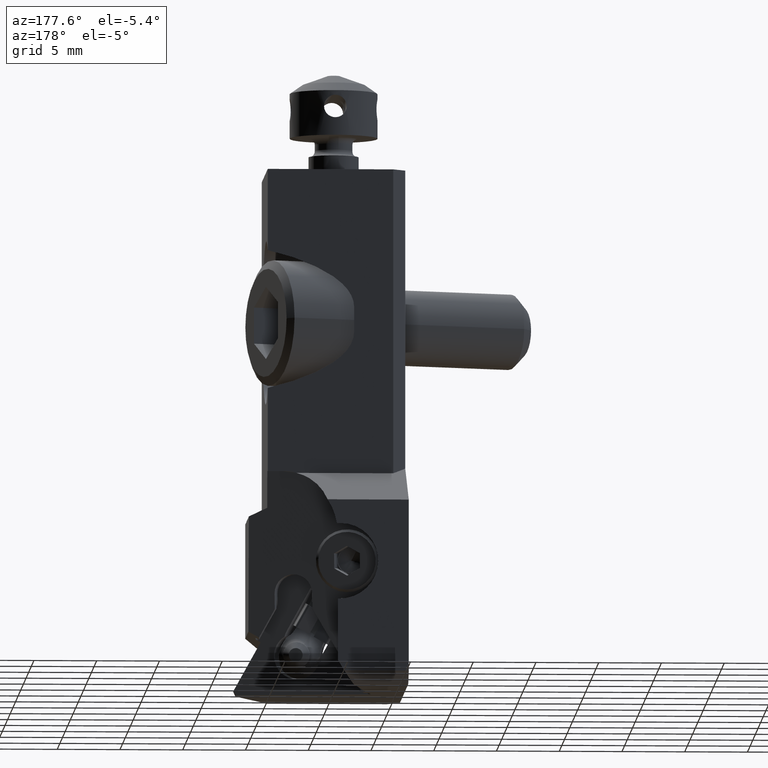
[diagram: clean part render]
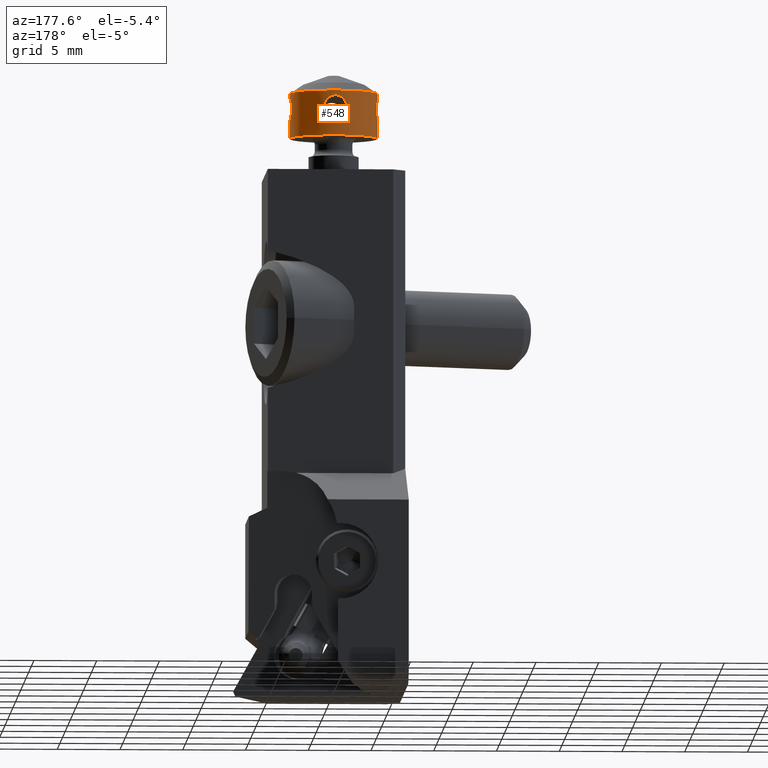
[diagram: same view with one face highlighted and labeled with its STEP entity id]
A machine part, auxiliary view. The second image highlights one B-rep face of the part: STEP entity #548.
In plain terms, the highlighted cylindrical surface (partial cylindrical patch) has radius 3.5 mm, axis along (0, 0, 1).
Its self-contained STEP definition (entity closure, byte-faithful):
#129=FACE_BOUND('',#1095,.T.);
#130=FACE_BOUND('',#1096,.T.);
#189=CYLINDRICAL_SURFACE('',#4578,3.5);
#339=CIRCLE('',#4567,3.5);
#345=CIRCLE('',#4576,3.5);
#548=ADVANCED_FACE('',(#129,#130),#189,.T.);
#1095=EDGE_LOOP('',(#2171,#2172,#2173,#2174,#2175,#2176,#2177,#2178,#2179,
#2180));
#1096=EDGE_LOOP('',(#2181,#2182));
#1170=B_SPLINE_CURVE_WITH_KNOTS('',3,(#7213,#7214,#7215,#7216,#7217,#7218,
#7219,#7220,#7221,#7222,#7223,#7224,#7225,#7226,#7227,#7228,#7229,#7230,
#7231,#7232,#7233,#7234),.UNSPECIFIED.,.F.,.F.,(4,1,1,1,1,1,1,1,1,1,1,1,
1,1,1,1,1,1,1,4),(0.,0.05263157894737,0.1052631578947,0.1578947368421,0.2105263157895,
0.2631578947368,0.3157894736842,0.3684210526316,0.4210526315789,0.4736842105263,
0.5263157894737,0.5789473684211,0.6315789473684,0.6842105263158,0.7368421052632,
0.7894736842105,0.8421052631579,0.8947368421053,0.9473684210526,1.),
 .UNSPECIFIED.);
#1171=B_SPLINE_CURVE_WITH_KNOTS('',3,(#7236,#7237,#7238,#7239,#7240,#7241,
#7242,#7243,#7244,#7245,#7246,#7247,#7248,#7249,#7250,#7251,#7252,#7253,
#7254,#7255,#7256,#7257),.UNSPECIFIED.,.F.,.F.,(4,1,1,1,1,1,1,1,1,1,1,1,
1,1,1,1,1,1,1,4),(0.,0.05263157894737,0.1052631578947,0.1578947368421,0.2105263157895,
0.2631578947368,0.3157894736842,0.3684210526316,0.4210526315789,0.4736842105263,
0.5263157894737,0.5789473684211,0.6315789473684,0.6842105263158,0.7368421052632,
0.7894736842105,0.8421052631579,0.8947368421053,0.9473684210526,1.),
 .UNSPECIFIED.);
#1172=B_SPLINE_CURVE_WITH_KNOTS('',3,(#7258,#7259,#7260,#7261,#7262,#7263,
#7264,#7265,#7266,#7267,#7268,#7269,#7270,#7271,#7272,#7273,#7274,#7275,
#7276,#7277,#7278,#7279),.UNSPECIFIED.,.F.,.F.,(4,1,1,1,1,1,1,1,1,1,1,1,
1,1,1,1,1,1,1,4),(0.,0.05263157894737,0.1052631578947,0.1578947368421,0.2105263157895,
0.2631578947368,0.3157894736842,0.3684210526316,0.4210526315789,0.4736842105263,
0.5263157894737,0.5789473684211,0.6315789473684,0.6842105263158,0.7368421052632,
0.7894736842105,0.8421052631579,0.8947368421053,0.9473684210526,1.),
 .UNSPECIFIED.);
#1173=B_SPLINE_CURVE_WITH_KNOTS('',3,(#7281,#7282,#7283,#7284,#7285,#7286,
#7287,#7288,#7289,#7290,#7291,#7292,#7293,#7294,#7295,#7296,#7297,#7298,
#7299,#7300,#7301,#7302),.UNSPECIFIED.,.F.,.F.,(4,1,1,1,1,1,1,1,1,1,1,1,
1,1,1,1,1,1,1,4),(0.,0.05263157894737,0.1052631578947,0.1578947368421,0.2105263157895,
0.2631578947368,0.3157894736842,0.3684210526316,0.4210526315789,0.4736842105263,
0.5263157894737,0.5789473684211,0.6315789473684,0.6842105263158,0.7368421052632,
0.7894736842105,0.8421052631579,0.8947368421053,0.9473684210526,1.),
 .UNSPECIFIED.);
#1174=B_SPLINE_CURVE_WITH_KNOTS('',3,(#7303,#7304,#7305,#7306,#7307,#7308,
#7309,#7310,#7311,#7312,#7313,#7314,#7315,#7316,#7317,#7318,#7319,#7320,
#7321,#7322,#7323,#7324,#7325,#7326,#7327,#7328,#7329,#7330,#7331,#7332,
#7333),.UNSPECIFIED.,.F.,.F.,(4,3,3,3,3,3,3,3,3,3,4),(0.,0.10499181573253,
0.209833584549119,0.316913861721892,0.425643838817805,0.532012948903621,
0.635811937228341,0.740586222170034,0.848427228178288,0.956892987707002,
1.),.UNSPECIFIED.);
#1175=B_SPLINE_CURVE_WITH_KNOTS('',3,(#7336,#7337,#7338,#7339,#7340,#7341,
#7342,#7343,#7344,#7345,#7346,#7347,#7348,#7349,#7350,#7351,#7352,#7353,
#7354,#7355,#7356,#7357,#7358,#7359,#7360,#7361,#7362,#7363,#7364,#7365,
#7366),.UNSPECIFIED.,.F.,.F.,(4,3,3,3,3,3,3,3,3,3,4),(0.,0.10499181573253,
0.209833584549119,0.316913861721892,0.425643838817805,0.532012948903621,
0.635811937228341,0.740586222170034,0.848427228178288,0.956892987707002,
1.),.UNSPECIFIED.);
#2171=ORIENTED_EDGE('',*,*,#3267,.F.);
#2172=ORIENTED_EDGE('',*,*,#3276,.T.);
#2173=ORIENTED_EDGE('',*,*,#3277,.F.);
#2174=ORIENTED_EDGE('',*,*,#3264,.F.);
#2175=ORIENTED_EDGE('',*,*,#3257,.T.);
#2176=ORIENTED_EDGE('',*,*,#3263,.F.);
#2177=ORIENTED_EDGE('',*,*,#3278,.T.);
#2178=ORIENTED_EDGE('',*,*,#3279,.F.);
#2179=ORIENTED_EDGE('',*,*,#3260,.F.);
#2180=ORIENTED_EDGE('',*,*,#3275,.T.);
#2181=ORIENTED_EDGE('',*,*,#3280,.F.);
#2182=ORIENTED_EDGE('',*,*,#3281,.F.);
#2712=VERTEX_POINT('',#7033);
#2713=VERTEX_POINT('',#7034);
#2714=VERTEX_POINT('',#7039);
#2715=VERTEX_POINT('',#7040);
#2717=VERTEX_POINT('',#7086);
#2718=VERTEX_POINT('',#7089);
#2720=VERTEX_POINT('',#7135);
#2721=VERTEX_POINT('',#7137);
#2726=VERTEX_POINT('',#7235);
#2727=VERTEX_POINT('',#7280);
#2728=VERTEX_POINT('',#7334);
#2729=VERTEX_POINT('',#7335);
#3257=EDGE_CURVE('',#2712,#2713,#339,.T.);
#3260=EDGE_CURVE('',#2714,#2715,#3669,.T.);
#3263=EDGE_CURVE('',#2717,#2713,#3670,.T.);
#3264=EDGE_CURVE('',#2712,#2718,#3671,.T.);
#3267=EDGE_CURVE('',#2720,#2721,#3672,.T.);
#3275=EDGE_CURVE('',#2714,#2721,#345,.T.);
#3276=EDGE_CURVE('',#2720,#2726,#1170,.T.);
#3277=EDGE_CURVE('',#2718,#2726,#1171,.T.);
#3278=EDGE_CURVE('',#2717,#2727,#1172,.T.);
#3279=EDGE_CURVE('',#2715,#2727,#1173,.T.);
#3280=EDGE_CURVE('',#2728,#2729,#1174,.T.);
#3281=EDGE_CURVE('',#2729,#2728,#1175,.T.);
#3669=LINE('',#7038,#4022);
#3670=LINE('',#7087,#4023);
#3671=LINE('',#7088,#4024);
#3672=LINE('',#7136,#4025);
#4022=VECTOR('',#5673,1.);
#4023=VECTOR('',#5674,1.);
#4024=VECTOR('',#5675,1.);
#4025=VECTOR('',#5676,1.);
#4567=AXIS2_PLACEMENT_3D('',#7032,#5665,#5666);
#4576=AXIS2_PLACEMENT_3D('',#7211,#5689,#5690);
#4578=AXIS2_PLACEMENT_3D('',#7367,#5693,#5694);
#5665=DIRECTION('',(0.,0.,1.));
#5666=DIRECTION('',(1.,0.,0.));
#5673=DIRECTION('',(1.1942633572E-13,0.,-1.));
#5674=DIRECTION('',(0.,0.,-1.));
#5675=DIRECTION('',(0.,0.,1.));
#5676=DIRECTION('',(1.206205990772E-13,0.,1.));
#5689=DIRECTION('',(0.,0.,-1.));
#5690=DIRECTION('',(-1.,0.,0.));
#5693=DIRECTION('',(0.,0.,1.));
#5694=DIRECTION('',(1.,0.,0.));
#7032=CARTESIAN_POINT('',(-5.5,6.25,3.));
#7033=CARTESIAN_POINT('',(-2.,6.25,3.));
#7034=CARTESIAN_POINT('',(-9.,6.25,3.));
#7038=CARTESIAN_POINT('',(-9.,6.25,6.571851993258));
#7039=CARTESIAN_POINT('',(-9.,6.25,6.571851993258));
#7040=CARTESIAN_POINT('',(-9.,6.25,6.2));
#7086=CARTESIAN_POINT('',(-9.,6.25,4.4));
#7087=CARTESIAN_POINT('',(-9.,6.25,4.4));
#7088=CARTESIAN_POINT('',(-2.,6.25,3.));
#7089=CARTESIAN_POINT('',(-2.,6.25,4.4));
#7135=CARTESIAN_POINT('',(-2.,6.25,6.2));
#7136=CARTESIAN_POINT('',(-2.,6.25,6.2));
#7137=CARTESIAN_POINT('',(-2.,6.25,6.571851993258));
#7211=CARTESIAN_POINT('',(-5.5,6.25,6.571851993258));
#7213=CARTESIAN_POINT('',(-2.,6.25,6.2));
#7214=CARTESIAN_POINT('',(-2.,6.274471658624,6.2));
#7215=CARTESIAN_POINT('',(-2.000514607872,6.323455264,6.198001848277));
#7216=CARTESIAN_POINT('',(-2.002815695168,6.396523104202,6.189011253113));
#7217=CARTESIAN_POINT('',(-2.006599836198,6.468806300674,6.174038563061));
#7218=CARTESIAN_POINT('',(-2.011782304463,6.539818574185,6.153135012601));
#7219=CARTESIAN_POINT('',(-2.018255665076,6.609209362136,6.126328934734));
#7220=CARTESIAN_POINT('',(-2.02585882004,6.676395878323,6.093757595391));
#7221=CARTESIAN_POINT('',(-2.03440683146,6.740934047643,6.055557741492));
#7222=CARTESIAN_POINT('',(-2.04368044522,6.802329286806,6.011916160497));
#7223=CARTESIAN_POINT('',(-2.053399293432,6.859922688951,5.963245577127));
#7224=CARTESIAN_POINT('',(-2.063311368342,6.913381463029,5.9097763394));
#7225=CARTESIAN_POINT('',(-2.073090390723,6.962061215702,5.8521424876));
#7226=CARTESIAN_POINT('',(-2.082467941356,7.005685383488,5.790739803889));
#7227=CARTESIAN_POINT('',(-2.091165987861,7.043907820213,5.726119229445));
#7228=CARTESIAN_POINT('',(-2.098930102995,7.076458038193,5.65891324369));
#7229=CARTESIAN_POINT('',(-2.105567957238,7.103247088579,5.589487698267));
#7230=CARTESIAN_POINT('',(-2.110892943373,7.124108225558,5.518520407122));
#7231=CARTESIAN_POINT('',(-2.114790176879,7.139046304512,5.446295858175));
#7232=CARTESIAN_POINT('',(-2.117162163096,7.14800821944,5.373337429198));
#7233=CARTESIAN_POINT('',(-2.117693094942,7.15,5.324430404372));
#7234=CARTESIAN_POINT('',(-2.117693094942,7.15,5.3));
#7235=CARTESIAN_POINT('',(-2.117693094942,7.15,5.3));
#7236=CARTESIAN_POINT('',(-2.,6.25,4.4));
#7237=CARTESIAN_POINT('',(-2.,6.274522578101,4.4));
#7238=CARTESIAN_POINT('',(-2.000514676326,6.32343118582,4.401998424504));
#7239=CARTESIAN_POINT('',(-2.002815150008,6.39651642821,4.410986600109));
#7240=CARTESIAN_POINT('',(-2.006599595897,6.46880088617,4.425960487351));
#7241=CARTESIAN_POINT('',(-2.011781289584,6.539806617775,4.446860844767));
#7242=CARTESIAN_POINT('',(-2.018255226611,6.609205522265,4.473669190797));
#7243=CARTESIAN_POINT('',(-2.025858447881,6.676392720369,4.506240796238));
#7244=CARTESIAN_POINT('',(-2.034406195862,6.740929618478,4.544439337218));
#7245=CARTESIAN_POINT('',(-2.04368023084,6.802328050811,4.58808276452));
#7246=CARTESIAN_POINT('',(-2.053399330722,6.859922941664,4.63675456795));
#7247=CARTESIAN_POINT('',(-2.063311629303,6.913382795513,4.690225173668));
#7248=CARTESIAN_POINT('',(-2.073090472876,6.962061666806,4.74785787883));
#7249=CARTESIAN_POINT('',(-2.08246908223,7.005690584657,4.80926796991));
#7250=CARTESIAN_POINT('',(-2.091166779307,7.043911183365,4.87388721599));
#7251=CARTESIAN_POINT('',(-2.098931024471,7.076461860402,4.941095068967));
#7252=CARTESIAN_POINT('',(-2.105569289958,7.103252375478,5.010527722582));
#7253=CARTESIAN_POINT('',(-2.110893464433,7.124110235011,5.081489097045));
#7254=CARTESIAN_POINT('',(-2.114790983894,7.139049376708,5.153716284486));
#7255=CARTESIAN_POINT('',(-2.117162102948,7.148007984438,5.226689938837));
#7256=CARTESIAN_POINT('',(-2.117693094942,7.15,5.275516003575));
#7257=CARTESIAN_POINT('',(-2.117693094942,7.15,5.3));
#7258=CARTESIAN_POINT('',(-9.,6.25,4.4));
#7259=CARTESIAN_POINT('',(-9.,6.274471633167,4.4));
#7260=CARTESIAN_POINT('',(-8.999485382482,6.323455191915,4.401998190363));
#7261=CARTESIAN_POINT('',(-8.997184382322,6.396521309634,4.410988441061));
#7262=CARTESIAN_POINT('',(-8.993400171279,6.468806198654,4.42596140954));
#7263=CARTESIAN_POINT('',(-8.988217800214,6.539817387802,4.446864554273));
#7264=CARTESIAN_POINT('',(-8.981744176753,6.609210981084,4.473671728136));
#7265=CARTESIAN_POINT('',(-8.974141067466,6.67639680318,4.506242888013));
#7266=CARTESIAN_POINT('',(-8.965592839261,6.740936374694,4.544443769654));
#7267=CARTESIAN_POINT('',(-8.95631942155,6.802330097498,4.588084488322));
#7268=CARTESIAN_POINT('',(-8.94660039829,6.8599244519,4.636756005647));
#7269=CARTESIAN_POINT('',(-8.936688422228,6.913382515024,4.690224879112));
#7270=CARTESIAN_POINT('',(-8.926909455102,6.962061988522,4.747858391724));
#7271=CARTESIAN_POINT('',(-8.917531504845,7.005687889331,4.809264034853));
#7272=CARTESIAN_POINT('',(-8.908833802862,7.043908700047,4.873882514368));
#7273=CARTESIAN_POINT('',(-8.901069606416,7.076459241869,4.94108940811));
#7274=CARTESIAN_POINT('',(-8.89443179162,7.103248080289,5.010515344979));
#7275=CARTESIAN_POINT('',(-8.889106965571,7.124108576496,5.081481037932));
#7276=CARTESIAN_POINT('',(-8.885209739784,7.139046621329,5.153706166008));
#7277=CARTESIAN_POINT('',(-8.882837847701,7.148008177999,5.22666260841));
#7278=CARTESIAN_POINT('',(-8.882306905058,7.15,5.275569560392));
#7279=CARTESIAN_POINT('',(-8.882306905058,7.15,5.3));
#7280=CARTESIAN_POINT('',(-8.882306905058,7.15,5.3));
#7281=CARTESIAN_POINT('',(-9.,6.25,6.2));
#7282=CARTESIAN_POINT('',(-9.,6.274522612453,6.2));
#7283=CARTESIAN_POINT('',(-8.999485335075,6.323431292276,6.198001621219));
#7284=CARTESIAN_POINT('',(-8.997184754545,6.396518652582,6.189013023181));
#7285=CARTESIAN_POINT('',(-8.993400383033,6.468801233649,6.174039432239));
#7286=CARTESIAN_POINT('',(-8.988218547611,6.539808477361,6.153138483071));
#7287=CARTESIAN_POINT('',(-8.981744954165,6.609203657583,6.126331566417));
#7288=CARTESIAN_POINT('',(-8.974141654935,6.676391885746,6.093759644201));
#7289=CARTESIAN_POINT('',(-8.965594142914,6.740927230081,6.055562222454));
#7290=CARTESIAN_POINT('',(-8.95631987006,6.802327423542,6.011917714676));
#7291=CARTESIAN_POINT('',(-8.946601085524,6.859920580597,5.963247587158));
#7292=CARTESIAN_POINT('',(-8.936688426996,6.913382558553,5.909775207133));
#7293=CARTESIAN_POINT('',(-8.926909598119,6.962061280431,5.852142462747));
#7294=CARTESIAN_POINT('',(-8.917531363006,7.005688582168,5.790735163973));
#7295=CARTESIAN_POINT('',(-8.908833200353,7.043911286323,5.726112676719));
#7296=CARTESIAN_POINT('',(-8.901069174716,7.076461030432,5.658906735494));
#7297=CARTESIAN_POINT('',(-8.894430778024,7.103252113312,5.589473177224));
#7298=CARTESIAN_POINT('',(-8.889106562604,7.124110129462,5.518511346235));
#7299=CARTESIAN_POINT('',(-8.885209015129,7.139049381157,5.446283761998));
#7300=CARTESIAN_POINT('',(-8.882837892188,7.148008002567,5.373309854987));
#7301=CARTESIAN_POINT('',(-8.882306905058,7.15,5.324483892306));
#7302=CARTESIAN_POINT('',(-8.882306905058,7.15,5.3));
#7303=CARTESIAN_POINT('',(-4.6,9.63230690505755,5.3));
#7304=CARTESIAN_POINT('',(-4.6,9.63230690505755,5.20113907042153));
#7305=CARTESIAN_POINT('',(-4.61678027119615,9.63688813090141,5.10092207051458));
#7306=CARTESIAN_POINT('',(-4.64877915474904,9.64491134974247,5.00772774231851));
#7307=CARTESIAN_POINT('',(-4.68075194700193,9.65292802659873,4.91460940306033));
#7308=CARTESIAN_POINT('',(-4.72871760830405,9.66451083900941,4.82594755173468));
#7309=CARTESIAN_POINT('',(-4.78876340117136,9.67697278957488,4.74850883915818));
#7310=CARTESIAN_POINT('',(-4.85007189637807,9.68969680236622,4.66944166871874));
#7311=CARTESIAN_POINT('',(-4.92564843290763,9.70359445484869,4.59989193342964));
#7312=CARTESIAN_POINT('',(-5.00963152140829,9.71547814236415,4.54532208512263));
#7313=CARTESIAN_POINT('',(-5.09483358077812,9.7275343154259,4.48996018383676));
#7314=CARTESIAN_POINT('',(-5.19115507217787,9.73776706419437,4.44850190486802));
#7315=CARTESIAN_POINT('',(-5.29049688931225,9.74372415147678,4.42472378838897));
#7316=CARTESIAN_POINT('',(-5.38769870618585,9.74955291245407,4.40145789502939));
#7317=CARTESIAN_POINT('',(-5.49054369390416,9.75140451823574,4.39450153609255));
#7318=CARTESIAN_POINT('',(-5.59012502979847,9.74883944744594,4.40452388138833));
#7319=CARTESIAN_POINT('',(-5.68738907436187,9.74633406672006,4.41431300332291));
#7320=CARTESIAN_POINT('',(-5.78418406372694,9.73958118044018,4.44051656279882));
#7321=CARTESIAN_POINT('',(-5.87276938786418,9.73009238145647,4.48082786700757));
#7322=CARTESIAN_POINT('',(-5.96221190893549,9.72051176399745,4.52152924402706));
#7323=CARTESIAN_POINT('',(-6.04570583643773,9.70795441131707,4.57764928835355));
#7324=CARTESIAN_POINT('',(-6.11698434869763,9.695189445221,4.64476697773833));
#7325=CARTESIAN_POINT('',(-6.19029767981284,9.68206007205642,4.71380070514853));
#7326=CARTESIAN_POINT('',(-6.25271002913289,9.66843573569853,4.79639114983453));
#7327=CARTESIAN_POINT('',(-6.29914975890346,9.65754452103631,4.88604388777971));
#7328=CARTESIAN_POINT('',(-6.34582360846683,9.64659839974709,4.97614859821775));
#7329=CARTESIAN_POINT('',(-6.37762831141278,9.63821135369314,5.07600848487481));
#7330=CARTESIAN_POINT('',(-6.39156235182359,9.6345408215607,5.17705052740741));
#7331=CARTESIAN_POINT('',(-6.39717154216871,9.63306323768756,5.21772530892921));
#7332=CARTESIAN_POINT('',(-6.4,9.63230690505755,5.25891369909232));
#7333=CARTESIAN_POINT('',(-6.4,9.63230690505755,5.3));
#7334=CARTESIAN_POINT('',(-4.6,9.63230690505755,5.3));
#7335=CARTESIAN_POINT('',(-6.4,9.63230690505755,5.3));
#7336=CARTESIAN_POINT('',(-6.4,9.63230690505755,5.3));
#7337=CARTESIAN_POINT('',(-6.4,9.63230690505755,5.39886092957848));
#7338=CARTESIAN_POINT('',(-6.38321972880385,9.63688813090141,5.49907792948542));
#7339=CARTESIAN_POINT('',(-6.35122084525096,9.64491134974247,5.59227225768149));
#7340=CARTESIAN_POINT('',(-6.31924805299807,9.65292802659873,5.68539059693967));
#7341=CARTESIAN_POINT('',(-6.27128239169595,9.66451083900941,5.77405244826532));
#7342=CARTESIAN_POINT('',(-6.21123659882864,9.67697278957488,5.85149116084182));
#7343=CARTESIAN_POINT('',(-6.14992810362193,9.68969680236622,5.93055833128126));
#7344=CARTESIAN_POINT('',(-6.07435156709237,9.70359445484869,6.00010806657036));
#7345=CARTESIAN_POINT('',(-5.99036847859171,9.71547814236415,6.05467791487737));
#7346=CARTESIAN_POINT('',(-5.90516641922188,9.7275343154259,6.11003981616324));
#7347=CARTESIAN_POINT('',(-5.80884492782213,9.73776706419437,6.15149809513198));
#7348=CARTESIAN_POINT('',(-5.70950311068775,9.74372415147678,6.17527621161103));
#7349=CARTESIAN_POINT('',(-5.61230129381415,9.74955291245407,6.19854210497061));
#7350=CARTESIAN_POINT('',(-5.50945630609584,9.75140451823574,6.20549846390745));
#7351=CARTESIAN_POINT('',(-5.40987497020153,9.74883944744594,6.19547611861167));
#7352=CARTESIAN_POINT('',(-5.31261092563813,9.74633406672006,6.18568699667709));
#7353=CARTESIAN_POINT('',(-5.21581593627306,9.73958118044018,6.15948343720118));
#7354=CARTESIAN_POINT('',(-5.12723061213582,9.73009238145647,6.11917213299243));
#7355=CARTESIAN_POINT('',(-5.03778809106451,9.72051176399745,6.07847075597294));
#7356=CARTESIAN_POINT('',(-4.95429416356227,9.70795441131707,6.02235071164645));
#7357=CARTESIAN_POINT('',(-4.88301565130237,9.695189445221,5.95523302226167));
#7358=CARTESIAN_POINT('',(-4.80970232018716,9.68206007205642,5.88619929485147));
#7359=CARTESIAN_POINT('',(-4.74728997086711,9.66843573569853,5.80360885016547));
#7360=CARTESIAN_POINT('',(-4.70085024109654,9.65754452103631,5.71395611222029));
#7361=CARTESIAN_POINT('',(-4.65417639153316,9.64659839974709,5.62385140178225));
#7362=CARTESIAN_POINT('',(-4.62237168858722,9.63821135369314,5.52399151512519));
#7363=CARTESIAN_POINT('',(-4.60843764817641,9.6345408215607,5.42294947259259));
#7364=CARTESIAN_POINT('',(-4.60282845783129,9.63306323768756,5.38227469107079));
#7365=CARTESIAN_POINT('',(-4.6,9.63230690505755,5.34108630090768));
#7366=CARTESIAN_POINT('',(-4.6,9.63230690505755,5.3));
#7367=CARTESIAN_POINT('',(-5.5,6.25,2.928562960135));